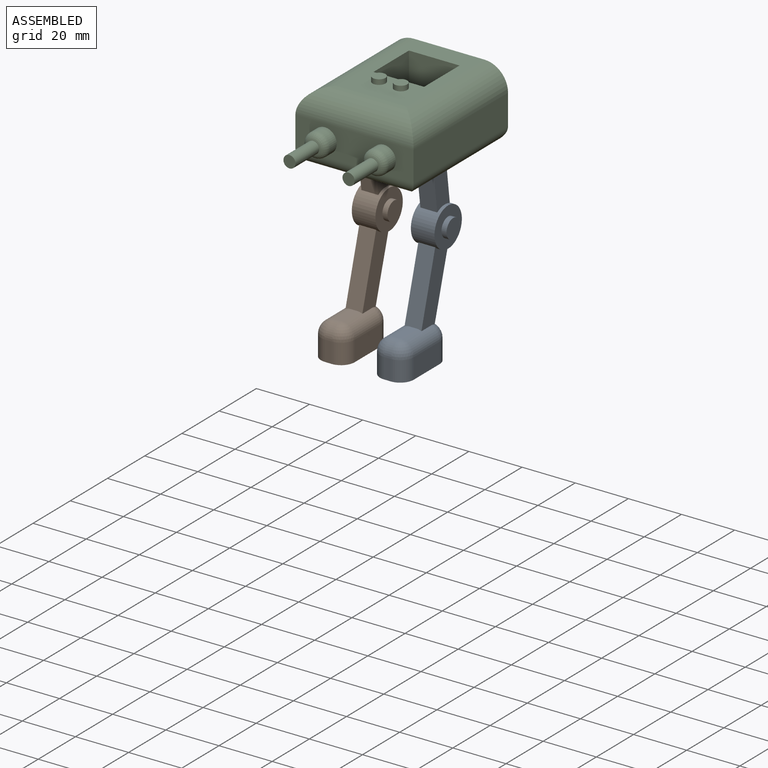
[diagram: assembled view]
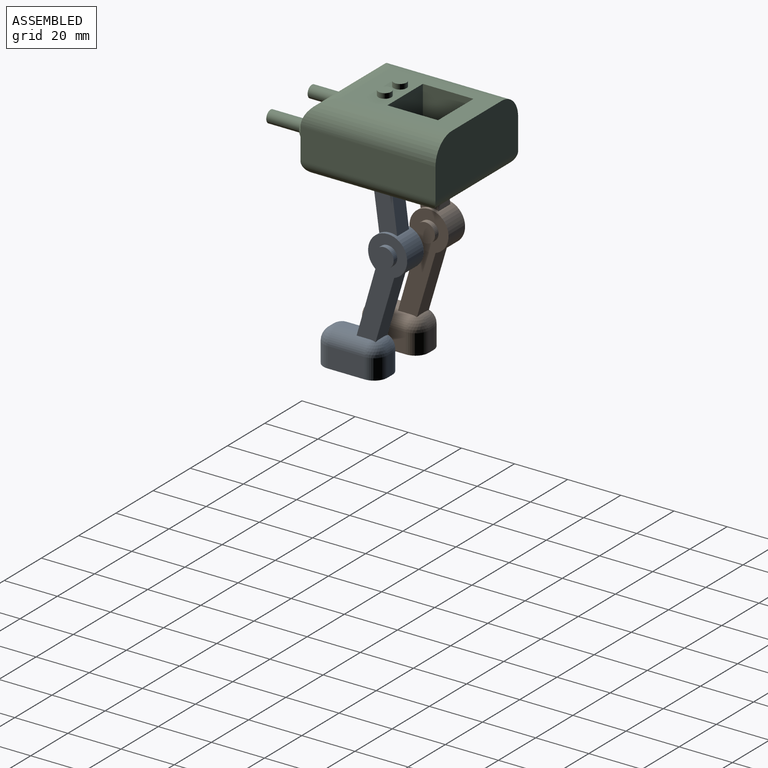
[diagram: assembled view, second angle]
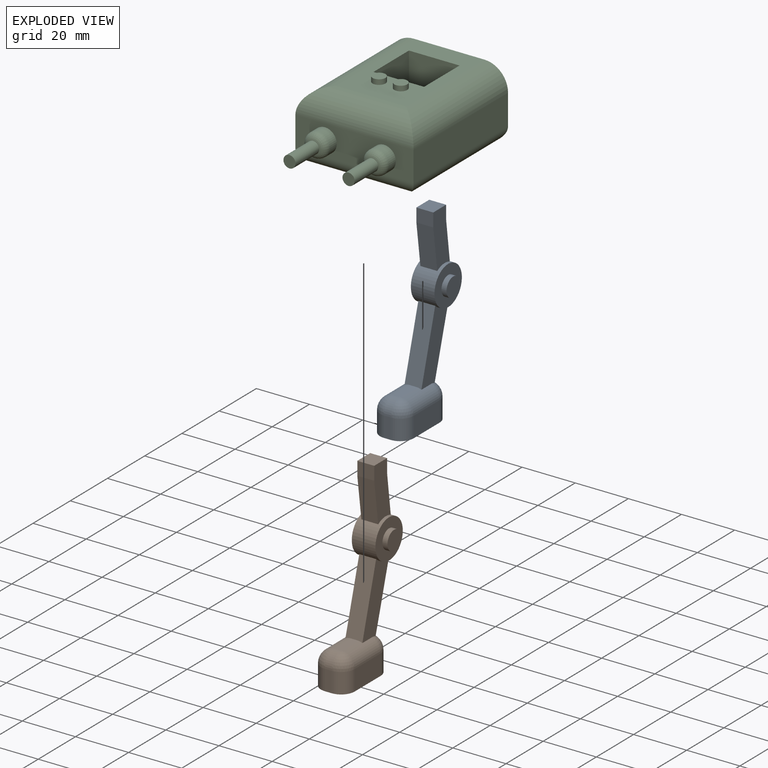
[diagram: exploded view]
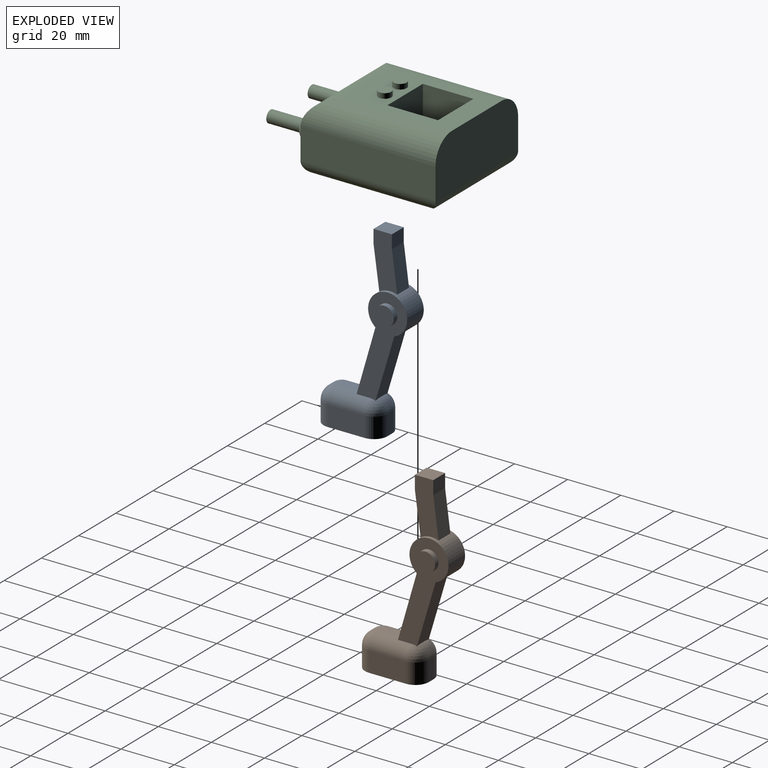
[diagram: exploded view, second angle]
ASSEMBLY  parts=3 mates=2
PART A: 36 faces, bbox 12.7x33.7x70.2 mm
  f0: plane 25.75x7.41mm, normal (0,-0.96,0.28), area 168.2mm2, adj f2,f3,f4,f20,f21,f22
  f1: plane 24.24x7.17mm, normal (0,0.96,-0.28), area 158.6mm2, adj f5,f6,f7,f20,f21,f22
  f2: plane 8.77x2.54mm, normal (0,0,1), area 22.3mm2, adj f0,f3,f4,f13
  f3: cylinder r=5.08mm len=13.88mm, axis (0,1,0), area 100.7mm2, adj f0,f2,f7,f11,f19,f20
  f4: cylinder r=5.08mm len=13.88mm, axis (0,-1,0), area 100.7mm2, adj f0,f2,f6,f12,f16,f21
  f5: cylinder r=5.08mm len=4.67mm, axis (-1,0,0), area 15mm2, adj f1,f6,f7,f9
  f6: sphere r=5.08mm, area 36.6mm2, adj f1,f4,f5,f14,f21
  f7: sphere r=5.08mm, area 36.6mm2, adj f1,f3,f5,f17,f20
  f8: plane 24.04x12.7mm, normal (0,0,-1), area 283.1mm2, adj f9,f10,f11,f12,f14,f15,f17,f18
  f9: plane 7.62x2.54mm, normal (0,1,0), area 19.4mm2, adj f5,f8,f14,f17
  f10: plane 7.62x2.54mm, normal (0,-1,0), area 19.4mm2, adj f8,f13,f15,f18
  f11: plane 13.88x7.62mm, normal (1,0,0), area 105.8mm2, adj f3,f8,f17,f18
  f12: plane 13.88x7.62mm, normal (-1,0,0), area 105.8mm2, adj f4,f8,f14,f15
  f13: cylinder r=5.08mm len=5.08mm, axis (1,0,0), area 20.3mm2, adj f2,f10,f16,f19
  f14: cylinder r=5.08mm len=7.62mm, axis (0,0,1), area 60.8mm2, adj f6,f8,f9,f12
  f15: cylinder r=5.08mm len=7.62mm, axis (0,0,-1), area 60.8mm2, adj f8,f10,f12,f16
  f16: sphere r=5.08mm, area 40.5mm2, adj f4,f13,f15
  f17: cylinder r=5.08mm len=7.62mm, axis (0,0,-1), area 60.8mm2, adj f7,f8,f9,f11
  f18: cylinder r=5.08mm len=7.62mm, axis (0,0,1), area 60.8mm2, adj f8,f10,f11,f19
  f19: sphere r=5.08mm, area 40.5mm2, adj f3,f13,f18
  f20: plane 26.15x14.29mm, normal (1,0,0), area 177.8mm2, adj f0,f1,f3,f7,f22
  f21: plane 26.15x14.29mm, normal (-1,0,0), area 177.8mm2, adj f0,f1,f4,f6,f22
  f22: cylinder r=7.36mm len=14.72mm, axis (-1,0,0), area 318.9mm2, adj f0,f1,f20,f21,f23,f24,f29,f30
  f23: plane 14.72x14.72mm, normal (1,0,0), area 129.4mm2, adj f22,f27
  f24: plane 14.72x14.72mm, normal (-1,0,0), area 129.4mm2, adj f22,f26
  f25: plane 7.2x7.2mm, normal (-1,0,0), area 40.7mm2, adj f26
  f26: cylinder r=3.6mm len=7.2mm, axis (-1,0,0), area 43.1mm2, adj f24,f25
  f27: cylinder r=3.6mm len=7.2mm, axis (-1,0,0), area 43.1mm2, adj f23,f28
  f28: plane 7.2x7.2mm, normal (1,0,0), area 40.7mm2, adj f27
  f29: plane 14.93x6.35mm, normal (0,0.99,0.13), area 95.7mm2, adj f22,f31,f32,f34
  f30: plane 15.63x6.35mm, normal (0,-0.99,-0.14), area 100.2mm2, adj f22,f31,f32,f33
  f31: plane 20.71x8.91mm, normal (1,0,0), area 136.5mm2, adj f22,f29,f30,f33,f34,f35
  f32: plane 20.71x8.91mm, normal (-1,0,0), area 136.5mm2, adj f22,f29,f30,f33,f34,f35
  f33: plane 6.35x5.08mm, normal (0,-1,0), area 32.3mm2, adj f30,f31,f32,f35
  f34: plane 6.35x5.08mm, normal (0,1,0), area 32.3mm2, adj f29,f31,f32,f35
  f35: plane 6.92x6.35mm, normal (0,0,1), area 43.9mm2, adj f31,f32,f33,f34
PART B: same geometry as A
PART C: 40 faces, bbox 44.5x69.9x27.3 mm
  f0: plane 40.64x34.29mm, normal (0,0,-1), area 1291.8mm2, adj f14,f15,f16,f17,f19,f20,f21,f22
  f1: plane 41.91x26.67mm, normal (0,0,1), area 717.3mm2, adj f4,f6,f7,f8,f9,f10,f11,f12
  f2: plane 44.45x11.43mm, normal (0,-1,0), area 382.9mm2, adj f3,f5,f7,f24,f28,f29
  f3: plane 50.8x11.43mm, normal (1,0,0), area 580.6mm2, adj f2,f4,f8,f25
  f4: plane 44.45x20.32mm, normal (0,1,0), area 869.3mm2, adj f1,f3,f5,f6,f8,f27
  f5: plane 50.8x11.43mm, normal (-1,0,0), area 580.6mm2, adj f2,f4,f6,f26
  f6: cylinder r=8.89mm len=50.8mm, axis (0,1,0), area 664.3mm2, adj f1,f4,f5,f7
  f7: cylinder r=8.89mm len=44.45mm, axis (-1,0,0), area 530.5mm2, adj f1,f2,f6,f8
  f8: cylinder r=8.89mm len=50.8mm, axis (0,-1,0), area 664.3mm2, adj f1,f3,f4,f7
  f9: plane 19.05x12.7mm, normal (-1,0,0), area 241.9mm2, adj f1,f10,f12,f13
  f10: plane 19.05x12.7mm, normal (0,-1,0), area 241.9mm2, adj f1,f9,f11,f13
  f11: plane 19.05x12.7mm, normal (1,0,0), area 241.9mm2, adj f1,f10,f12,f13
  f12: plane 19.05x12.7mm, normal (0,1,0), area 241.9mm2, adj f1,f9,f11,f13
  f13: plane 19.05x19.05mm, normal (0,0,1), area 362.9mm2, adj f9,f10,f11,f12
  f14: plane 6.86x4.57mm, normal (0,-1,0), area 31.4mm2, adj f0,f15,f17,f18
  f15: plane 7.42x4.57mm, normal (-1,0,0), area 33.9mm2, adj f0,f14,f16,f18
  f16: plane 6.86x4.57mm, normal (0,1,0), area 31.4mm2, adj f0,f15,f17,f18
  f17: plane 7.42x4.57mm, normal (1,0,0), area 33.9mm2, adj f0,f14,f16,f18
  f18: plane 7.42x6.86mm, normal (0,0,-1), area 50.9mm2, adj f14,f15,f16,f17
  f19: plane 7.42x4.57mm, normal (1,0,0), area 33.9mm2, adj f0,f20,f22,f23
  f20: plane 6.86x4.57mm, normal (0,-1,0), area 31.4mm2, adj f0,f19,f21,f23
  f21: plane 7.42x4.57mm, normal (-1,0,0), area 33.9mm2, adj f0,f20,f22,f23
  f22: plane 6.86x4.57mm, normal (0,1,0), area 31.4mm2, adj f0,f19,f21,f23
  f23: plane 7.42x6.86mm, normal (0,0,-1), area 50.9mm2, adj f19,f20,f21,f22
  f24: cylinder r=5.08mm len=44.45mm, axis (1,0,0), area 325.2mm2, adj f0,f2,f25,f26
  f25: cylinder r=5.08mm len=50.8mm, axis (0,1,0), area 375.9mm2, adj f0,f3,f24,f27
  f26: cylinder r=5.08mm len=50.8mm, axis (0,-1,0), area 375.9mm2, adj f0,f5,f24,f27
  f27: cylinder r=5.08mm len=44.45mm, axis (-1,0,0), area 325.2mm2, adj f0,f4,f25,f26
  f28: cylinder r=4.46mm len=8.93mm, axis (0,1,0), area 107.6mm2, adj f2,f34
  f29: cylinder r=4.46mm len=8.93mm, axis (0,1,0), area 107.6mm2, adj f2,f35
  f30: cylinder r=2.28mm len=12.7mm, axis (0,1,0), area 181.8mm2, adj f31,f34
  f31: plane 4.56x4.56mm, normal (0,-1,0), area 16.3mm2, adj f30
  f32: cylinder r=2.28mm len=12.7mm, axis (0,1,0), area 181.8mm2, adj f33,f35
  f33: plane 4.56x4.56mm, normal (0,-1,0), area 16.3mm2, adj f32
  f34: torus R=1.92mm, axis (0,-1,0), area 84.1mm2, adj f28,f30
  f35: torus R=1.92mm, axis (0,-1,0), area 84.1mm2, adj f29,f32
  f36: cylinder r=2.44mm len=4.89mm, axis (0,0,-1), area 29.1mm2, adj f1,f37
  f37: plane 4.89x4.89mm, normal (0,0,1), area 18.8mm2, adj f36
  f38: cylinder r=2.44mm len=4.89mm, axis (0,0,-1), area 29.1mm2, adj f1,f39
  f39: plane 4.89x4.89mm, normal (0,0,1), area 18.8mm2, adj f38
PLACE A t=(89.79,0,0)mm
PLACE B t=(67.57,0,0)mm
PLACE C t=(78.68,11.54,59.26)mm
MATE fastened C.f18 <-> A.f35  axis (0,0,-1) through (89.79,11.54,63.83)mm
MATE fastened C.f23 <-> B.f35  axis (0,0,-1) through (67.57,11.54,63.83)mm
